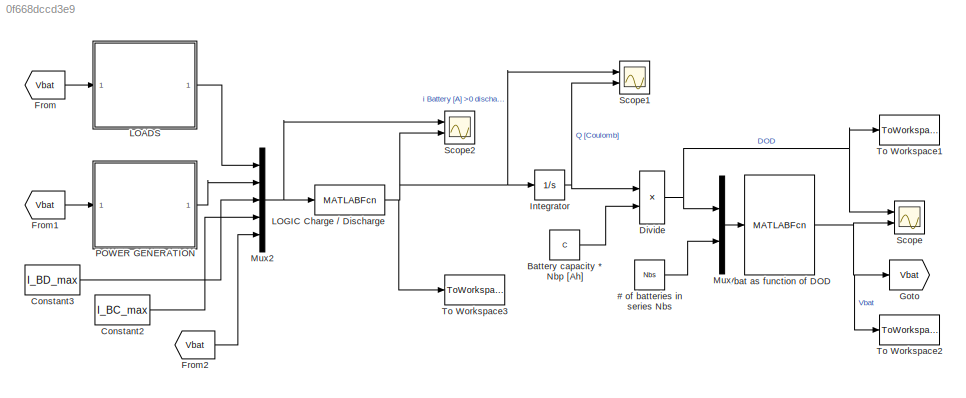
MODEL slx_0f668dccd3e9
KIND model
CONFIG AbsTol = auto
CONFIG EnableMultiTasking = off
CONFIG FixedStep = delta_t
CONFIG MaxStep = 10
CONFIG MinStep = auto
CONFIG RelTol = 1e-3
CONFIG SampleTimeConstraint = Unconstrained
CONFIG SolverName = FixedStepAuto
CONFIG StartTime = 0.0
CONFIG StopTime = tsimulation
BLOCK [Constant] # of batteries in series Nbs
  Value = Nbs
BLOCK [Constant] Battery capacity * Nbp [Ah]
  Value = C
BLOCK [Constant] Constant2
  Value = I_BC_max
BLOCK [Constant] Constant3
  Value = I_BD_max
BLOCK [Product] Divide
  Inputs = */
  Ports = [2, 1]
BLOCK [From] From
  GotoTag = Vbat
BLOCK [From] From1
  GotoTag = Vbat
BLOCK [From] From2
  GotoTag = Vbat
BLOCK [Goto] Goto
  GotoTag = Vbat
BLOCK [Integrator] Integrator
  InitialCondition = DOD_0
  Ports = [1, 1]
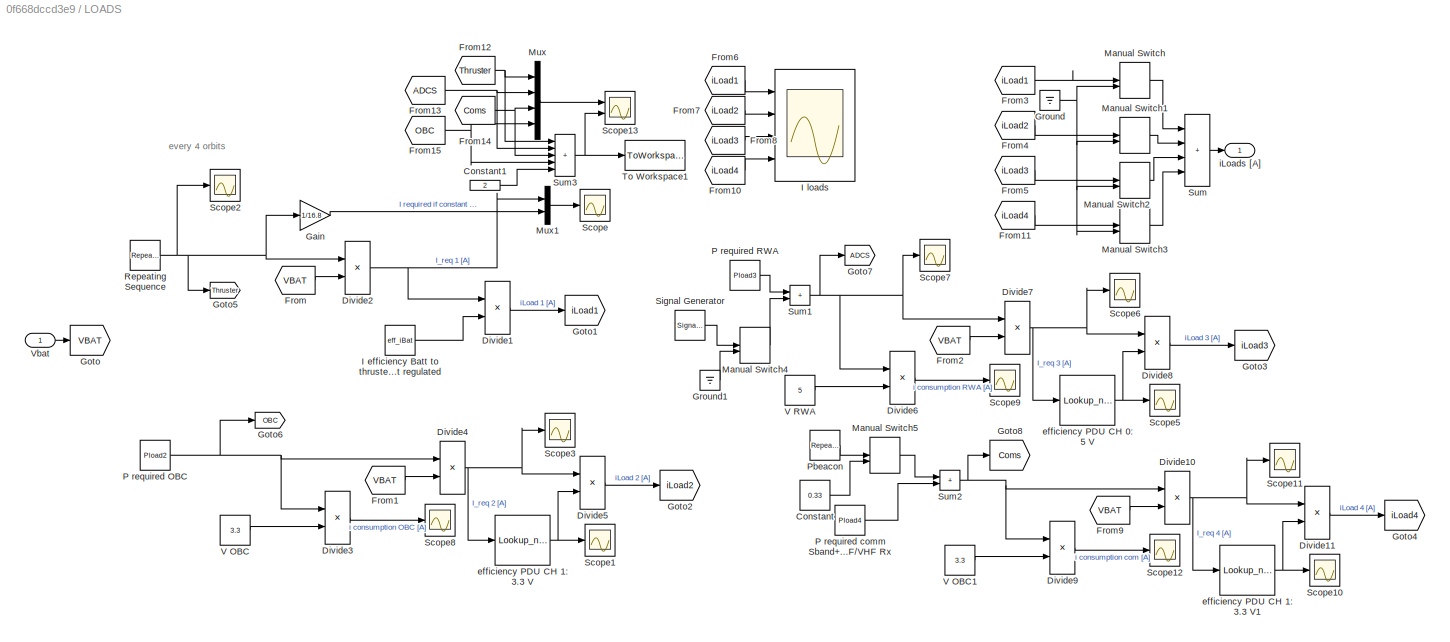
BLOCK [SubSystem] LOADS
  Ports = [1, 1]
  RequestExecContextInheritance = off
BLOCK [Constant] LOADS/Constant
  Value = 0.33
BLOCK [Constant] LOADS/Constant1
  Value = 2
BLOCK [Product] LOADS/Divide1
  Inputs = */
  Ports = [2, 1]
BLOCK [Product] LOADS/Divide10
  Inputs = */
  Ports = [2, 1]
BLOCK [Product] LOADS/Divide11
  Inputs = */
  Ports = [2, 1]
BLOCK [Product] LOADS/Divide2
  Inputs = */
  Ports = [2, 1]
BLOCK [Product] LOADS/Divide3
  Inputs = */
  Ports = [2, 1]
BLOCK [Product] LOADS/Divide4
  Inputs = */
  Ports = [2, 1]
BLOCK [Product] LOADS/Divide5
  Inputs = */
  Ports = [2, 1]
BLOCK [Product] LOADS/Divide6
  Inputs = */
  Ports = [2, 1]
BLOCK [Product] LOADS/Divide7
  Inputs = */
  Ports = [2, 1]
BLOCK [Product] LOADS/Divide8
  Inputs = */
  Ports = [2, 1]
BLOCK [Product] LOADS/Divide9
  Inputs = */
  Ports = [2, 1]
BLOCK [From] LOADS/From
  GotoTag = VBAT
BLOCK [From] LOADS/From1
  GotoTag = VBAT
BLOCK [From] LOADS/From10
  GotoTag = iLoad4
BLOCK [From] LOADS/From11
  GotoTag = iLoad4
BLOCK [From] LOADS/From12
  GotoTag = Thruster
BLOCK [From] LOADS/From13
  GotoTag = ADCS
BLOCK [From] LOADS/From14
  GotoTag = Coms
BLOCK [From] LOADS/From15
  GotoTag = OBC
BLOCK [From] LOADS/From2
  GotoTag = VBAT
BLOCK [From] LOADS/From3
  GotoTag = iLoad1
BLOCK [From] LOADS/From4
  GotoTag = iLoad2
BLOCK [From] LOADS/From5
  GotoTag = iLoad3
BLOCK [From] LOADS/From6
  GotoTag = iLoad1
BLOCK [From] LOADS/From7
  GotoTag = iLoad2
BLOCK [From] LOADS/From8
  GotoTag = iLoad3
BLOCK [From] LOADS/From9
  GotoTag = VBAT
BLOCK [Gain] LOADS/Gain
  Gain = 1/16.8
BLOCK [Goto] LOADS/Goto
  GotoTag = VBAT
BLOCK [Goto] LOADS/Goto1
  GotoTag = iLoad1
BLOCK [Goto] LOADS/Goto2
  GotoTag = iLoad2
BLOCK [Goto] LOADS/Goto3
  GotoTag = iLoad3
BLOCK [Goto] LOADS/Goto4
  GotoTag = iLoad4
BLOCK [Goto] LOADS/Goto5
  GotoTag = Thruster
BLOCK [Goto] LOADS/Goto6
  GotoTag = OBC
BLOCK [Goto] LOADS/Goto7
  GotoTag = ADCS
BLOCK [Goto] LOADS/Goto8
  GotoTag = Coms
BLOCK [Ground] LOADS/Ground
BLOCK [Ground] LOADS/Ground1
BLOCK [Constant] LOADS/I efficiency Batt to thruster not regulated
  Value = eff_iBat
BLOCK [Scope] LOADS/I loads
  Floating = off
  NumInputPorts = 4
  Ports = [4]
  ScopeSpecificationString = Simulink.scopes.TimeScopeBlockCfg('CurrentConfiguration', extmgr.ConfigurationSet(extmgr.Configuration('Core','General UI',true),extmgr.Configuration('Core','Source UI',true),extmgr.Configuration('Sources','WiredSimulink',true,'DataLoggingVariableName','ScopeData1'),extmgr.Configuration('Visuals','Time Domain',true,'SerializedDisplays',{struct('MinYLimReal','-0.43326','MaxYLimReal','4.45719','YLab...<+3527ch>
BLOCK [ManualSwitch] LOADS/Manual Switch
BLOCK [ManualSwitch] LOADS/Manual Switch1
BLOCK [ManualSwitch] LOADS/Manual Switch2
BLOCK [ManualSwitch] LOADS/Manual Switch3
BLOCK [ManualSwitch] LOADS/Manual Switch4
  CurrentSetting = 0
BLOCK [ManualSwitch] LOADS/Manual Switch5
BLOCK [Mux] LOADS/Mux
  DisplayOption = bar
  Ports = [4, 1]
BLOCK [Mux] LOADS/Mux1
  DisplayOption = bar
  Inputs = 2
  Ports = [2, 1]
BLOCK [Constant] LOADS/P required OBC
  Value = Pload2
BLOCK [Constant] LOADS/P required RWA
  Value = Pload3
BLOCK [Constant] LOADS/P required comm Sband+UHF//VHF Rx
  Value = Pload4
BLOCK [Reference] LOADS/Pbeacon  REF=simulink/Sources/Repeating
Sequence
  Ports = [0, 1]
  SourceBlock = simulink/Sources/Repeating\nSequence
  SourceProductBaseCode = SL
  SourceType = Repeating table
BLOCK [Reference] LOADS/Repeating Sequence  REF=simulink/Sources/Repeating
Sequence
  Ports = [0, 1]
  SourceBlock = simulink/Sources/Repeating\nSequence
  SourceProductBaseCode = SL
  SourceType = Repeating table
BLOCK [Scope] LOADS/Scope
  Floating = off
  NumInputPorts = 1
  Ports = [1]
  ScopeSpecificationString = Simulink.scopes.TimeScopeBlockCfg('CurrentConfiguration', extmgr.ConfigurationSet(extmgr.Configuration('Core','General UI',true),extmgr.Configuration('Core','Source UI',true),extmgr.Configuration('Sources','WiredSimulink',true,'DataLoggingVariableName','ScopeData2'),extmgr.Configuration('Visuals','Time Domain',true,'SerializedDisplays',{struct('MinYLimReal','-0.47495','MaxYLimReal','4.46506','YLab...<+1516ch>
BLOCK [Scope] LOADS/Scope1
  Floating = off
  NumInputPorts = 1
  Ports = [1]
  ScopeSpecificationString = Simulink.scopes.TimeScopeBlockCfg('CurrentConfiguration', extmgr.ConfigurationSet(extmgr.Configuration('Core','General UI',true),extmgr.Configuration('Core','Source UI',true),extmgr.Configuration('Sources','WiredSimulink',true,'DataLoggingVariableName','ScopeData1'),extmgr.Configuration('Visuals','Time Domain',true,'SerializedDisplays',{struct('MinYLimReal','0.51067','MaxYLimReal','0.56272','YLabe...<+1383ch>
BLOCK [Scope] LOADS/Scope10
  Floating = off
  NumInputPorts = 1
  Ports = [1]
  ScopeSpecificationString = Simulink.scopes.TimeScopeBlockCfg('CurrentConfiguration', extmgr.ConfigurationSet(extmgr.Configuration('Core','General UI',true),extmgr.Configuration('Core','Source UI',true),extmgr.Configuration('Sources','WiredSimulink',true,'DataLoggingVariableName','ScopeData1'),extmgr.Configuration('Visuals','Time Domain',true,'SerializedDisplays',{struct('MinYLimReal','0.38923','MaxYLimReal','0.88187','YLabe...<+1384ch>
BLOCK [Scope] LOADS/Scope11
  Floating = off
  NumInputPorts = 1
  Ports = [1]
  ScopeSpecificationString = Simulink.scopes.TimeScopeBlockCfg('CurrentConfiguration', extmgr.ConfigurationSet(extmgr.Configuration('Core','General UI',true),extmgr.Configuration('Core','Source UI',true),extmgr.Configuration('Sources','WiredSimulink',true,'DataLoggingVariableName','ScopeData2'),extmgr.Configuration('Visuals','Time Domain',true,'SerializedDisplays',{struct('MinYLimReal','0.07248','MaxYLimReal','0.3596','YLabel...<+1461ch>
BLOCK [Scope] LOADS/Scope12
  Floating = off
  NumInputPorts = 1
  Ports = [1]
  ScopeSpecificationString = Simulink.scopes.TimeScopeBlockCfg('CurrentConfiguration', extmgr.ConfigurationSet(extmgr.Configuration('Core','General UI',true),extmgr.Configuration('Core','Source UI',true),extmgr.Configuration('Sources','WiredSimulink',true,'DataLoggingVariableName','ScopeData3'),extmgr.Configuration('Visuals','Time Domain',true,'SerializedDisplays',{struct('MinYLimReal','0.39015','MaxYLimReal','1.64015','YLabe...<+1477ch>
BLOCK [Scope] LOADS/Scope13
  Floating = off
  NumInputPorts = 2
  Ports = [2]
  ScopeSpecificationString = Simulink.scopes.TimeScopeBlockCfg('CurrentConfiguration', extmgr.ConfigurationSet(extmgr.Configuration('Core','General UI',true),extmgr.Configuration('Core','Source UI',true),extmgr.Configuration('Sources','WiredSimulink',true,'DataLoggingVariableName','ScopeData1'),extmgr.Configuration('Visuals','Time Domain',true,'SerializedDisplays',{struct('MinYLimReal','-7.14','MaxYLimReal','67.46','YLabelRea...<+2211ch>
BLOCK [Scope] LOADS/Scope2
  Floating = off
  NumInputPorts = 1
  Ports = [1]
  ScopeSpecificationString = Simulink.scopes.TimeScopeBlockCfg('CurrentConfiguration', extmgr.ConfigurationSet(extmgr.Configuration('Core','General UI',true),extmgr.Configuration('Core','Source UI',true),extmgr.Configuration('Sources','WiredSimulink',true,'DataLoggingVariableName','ScopeData1'),extmgr.Configuration('Visuals','Time Domain',true,'SerializedDisplays',{struct('MinYLimReal','-7.14','MaxYLimReal','67.46','YLabelRea...<+1577ch>
BLOCK [Scope] LOADS/Scope3
  Floating = off
  NumInputPorts = 1
  Ports = [1]
  ScopeSpecificationString = Simulink.scopes.TimeScopeBlockCfg('CurrentConfiguration', extmgr.ConfigurationSet(extmgr.Configuration('Core','General UI',true),extmgr.Configuration('Core','Source UI',true),extmgr.Configuration('Sources','WiredSimulink',true,'DataLoggingVariableName','ScopeData2'),extmgr.Configuration('Visuals','Time Domain',true,'SerializedDisplays',{struct('MinYLimReal','0.11785','MaxYLimReal','0.12986','YLabe...<+1368ch>
BLOCK [Scope] LOADS/Scope5
  Floating = off
  NumInputPorts = 1
  Ports = [1]
  ScopeSpecificationString = Simulink.scopes.TimeScopeBlockCfg('CurrentConfiguration', extmgr.ConfigurationSet(extmgr.Configuration('Core','General UI',true),extmgr.Configuration('Core','Source UI',true),extmgr.Configuration('Sources','WiredSimulink',true,'DataLoggingVariableName','ScopeData1'),extmgr.Configuration('Visuals','Time Domain',true,'SerializedDisplays',{struct('MinYLimReal','0.48648','MaxYLimReal','0.83866','YLabe...<+1379ch>
BLOCK [Scope] LOADS/Scope6
  Floating = off
  NumInputPorts = 1
  Ports = [1]
  ScopeSpecificationString = Simulink.scopes.TimeScopeBlockCfg('CurrentConfiguration', extmgr.ConfigurationSet(extmgr.Configuration('Core','General UI',true),extmgr.Configuration('Core','Source UI',true),extmgr.Configuration('Sources','WiredSimulink',true,'DataLoggingVariableName','ScopeData2'),extmgr.Configuration('Visuals','Time Domain',true,'SerializedDisplays',{struct('MinYLimReal','0.1029','MaxYLimReal','0.27782','YLabel...<+1362ch>
BLOCK [Scope] LOADS/Scope7
  Floating = off
  NumInputPorts = 1
  Ports = [1]
  ScopeSpecificationString = Simulink.scopes.TimeScopeBlockCfg('CurrentConfiguration', extmgr.ConfigurationSet(extmgr.Configuration('Core','General UI',true),extmgr.Configuration('Core','Source UI',true),extmgr.Configuration('Sources','WiredSimulink',true,'DataLoggingVariableName','ScopeData3'),extmgr.Configuration('Visuals','Time Domain',true,'SerializedDisplays',{struct('MinYLimReal','1.75001','MaxYLimReal','4.25','YLabelRe...<+1447ch>
BLOCK [Scope] LOADS/Scope8
  Floating = off
  NumInputPorts = 1
  Ports = [1]
  ScopeSpecificationString = Simulink.scopes.TimeScopeBlockCfg('CurrentConfiguration', extmgr.ConfigurationSet(extmgr.Configuration('Core','General UI',true),extmgr.Configuration('Core','Source UI',true),extmgr.Configuration('Sources','WiredSimulink',true,'DataLoggingVariableName','ScopeData2'),extmgr.Configuration('Visuals','Time Domain',true,'SerializedDisplays',{struct('MinYLimReal','0.51067','MaxYLimReal','0.56272','YLabe...<+1383ch>
BLOCK [Scope] LOADS/Scope9
  Floating = off
  NumInputPorts = 1
  Ports = [1]
  ScopeSpecificationString = Simulink.scopes.TimeScopeBlockCfg('CurrentConfiguration', extmgr.ConfigurationSet(extmgr.Configuration('Core','General UI',true),extmgr.Configuration('Core','Source UI',true),extmgr.Configuration('Sources','WiredSimulink',true,'DataLoggingVariableName','ScopeData3'),extmgr.Configuration('Visuals','Time Domain',true,'SerializedDisplays',{struct('MinYLimReal','0.51067','MaxYLimReal','0.56272','YLabe...<+1383ch>
BLOCK [SignalGenerator] LOADS/Signal Generator
  Amplitude = 0.6
  Frequency = 0.01
  Ports = [0, 1]
  WaveForm = random
BLOCK [Sum] LOADS/Sum
  IconShape = rectangular
  Inputs = ++++
  Ports = [4, 1]
BLOCK [Sum] LOADS/Sum1
  IconShape = rectangular
  Ports = [2, 1]
BLOCK [Sum] LOADS/Sum2
  IconShape = rectangular
  Ports = [2, 1]
BLOCK [Sum] LOADS/Sum3
  IconShape = rectangular
  Inputs = +++++
  Ports = [5, 1]
BLOCK [ToWorkspace] LOADS/To Workspace1
  FixptAsFi = on
  MaxDataPoints = inf
  Ports = [1]
  SampleTime = -1
  SaveFormat = Timeseries
  VariableName = LOAD
BLOCK [Constant] LOADS/V OBC
  Value = 3.3
BLOCK [Constant] LOADS/V OBC1
  Value = 3.3
BLOCK [Constant] LOADS/V RWA
  Value = 5
BLOCK [Inport] LOADS/Vbat
BLOCK [Lookup_n-D] LOADS/efficiency PDU CH 0: 5 V
  BreakpointsForDimension1 = [0,0.15,0.18,0.25,0.4,0.5,0.75,1,1.5,2,3,4]
  InputPortMap = u0
  InternalRulePriority = Speed
  NumberOfTableDimensions = 1
  Ports = [1, 1]
  RndMeth = Simplest
  Table = [0.8,0.8,0.8,0.8,0.85,0.95,0.96,0.958,0.95,0.94,0.92,0.9]
BLOCK [Lookup_n-D] LOADS/efficiency PDU CH 1: 3.3 V
  BreakpointsForDimension1 = [0,0.15,0.18,0.25,0.4,0.5,0.75,1,1.5,2,3,4]
  InputPortMap = u0
  InternalRulePriority = Speed
  NumberOfTableDimensions = 1
  Ports = [1, 1]
  RndMeth = Simplest
  Table = [0.94,0.95,0.95,0.95,0.945,0.946,0.945,0.9425,0.931,0.9181,0.8916,0.862]
BLOCK [Lookup_n-D] LOADS/efficiency PDU CH 1: 3.3 V1
  BreakpointsForDimension1 = [0,0.15,0.18,0.25,0.4,0.5,0.75,1,1.5,2,3,4]
  InputPortMap = u0
  InternalRulePriority = Speed
  NumberOfTableDimensions = 1
  Ports = [1, 1]
  RndMeth = Simplest
  Table = [0.94,0.95,0.95,0.95,0.945,0.946,0.945,0.9425,0.931,0.9181,0.8916,0.862]
BLOCK [Outport] LOADS/iLoads [A]
BLOCK [MATLABFcn] LOGIC Charge // Discharge
  MATLABFcn = battchargedischarge
  Ports = [1, 1]
BLOCK [Mux] Mux
  DisplayOption = bar
  Inputs = 2
  Ports = [2, 1]
BLOCK [Mux] Mux2
  DisplayOption = bar
  Inputs = 5
  Ports = [5, 1]
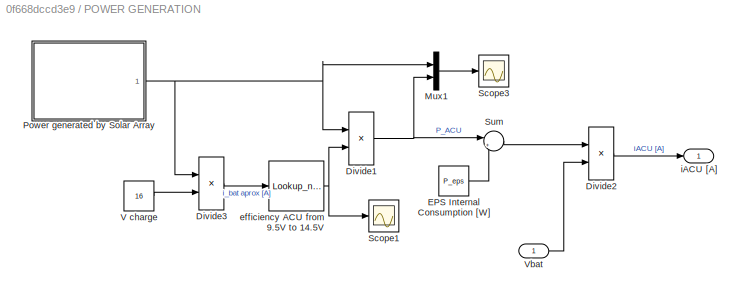
BLOCK [SubSystem] POWER GENERATION
  Ports = [1, 1]
  RequestExecContextInheritance = off
BLOCK [Product] POWER GENERATION/Divide1
  Inputs = **
  Ports = [2, 1]
BLOCK [Product] POWER GENERATION/Divide2
  Inputs = */
  Ports = [2, 1]
BLOCK [Product] POWER GENERATION/Divide3
  Inputs = */
  Ports = [2, 1]
BLOCK [Constant] POWER GENERATION/EPS Internal Consumption [W]
  Value = P_eps
BLOCK [Mux] POWER GENERATION/Mux1
  DisplayOption = bar
  Inputs = 2
  Ports = [2, 1]
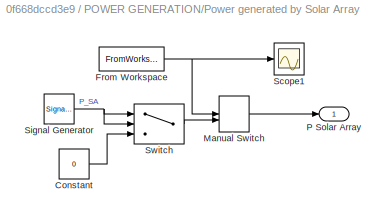
BLOCK [SubSystem] POWER GENERATION/Power generated by Solar Array
  Ports = [0, 1]
  RequestExecContextInheritance = off
BLOCK [Constant] POWER GENERATION/Power generated by Solar Array/Constant
  Value = 0
BLOCK [FromWorkspace] POWER GENERATION/Power generated by Solar Array/From Workspace
  VariableName = Power.Psa1
BLOCK [ManualSwitch] POWER GENERATION/Power generated by Solar Array/Manual Switch
BLOCK [Outport] POWER GENERATION/Power generated by Solar Array/P Solar Array
BLOCK [Scope] POWER GENERATION/Power generated by Solar Array/Scope1
  Floating = off
  NumInputPorts = 1
  Ports = [1]
  ScopeSpecificationString = Simulink.scopes.TimeScopeBlockCfg('CurrentConfiguration', extmgr.ConfigurationSet(extmgr.Configuration('Core','General UI',true),extmgr.Configuration('Core','Source UI',true),extmgr.Configuration('Sources','WiredSimulink',true,'DataLoggingVariableName','ScopeData3'),extmgr.Configuration('Visuals','Time Domain',true,'SerializedDisplays',{struct('MinYLimReal','46.10258','MaxYLimReal','46.35505','YLa...<+1404ch>
BLOCK [SignalGenerator] POWER GENERATION/Power generated by Solar Array/Signal Generator
  Amplitude = -Psa
  Frequency = 1/Torbit
  Ports = [0, 1]
BLOCK [Switch] POWER GENERATION/Power generated by Solar Array/Switch
  Criteria = u2 > Threshold
  InputSameDT = off
  SaturateOnIntegerOverflow = off
BLOCK [Scope] POWER GENERATION/Scope1
  Floating = off
  NumInputPorts = 1
  Ports = [1]
  ScopeSpecificationString = Simulink.scopes.TimeScopeBlockCfg('CurrentConfiguration', extmgr.ConfigurationSet(extmgr.Configuration('Core','General UI',true),extmgr.Configuration('Core','Source UI',true),extmgr.Configuration('Sources','WiredSimulink',true,'DataLoggingVariableName','ScopeData1'),extmgr.Configuration('Visuals','Time Domain',true,'SerializedDisplays',{struct('MinYLimReal','-0.10579','MaxYLimReal','0.95213','YLab...<+1398ch>
BLOCK [Scope] POWER GENERATION/Scope3
  Floating = off
  NumInputPorts = 1
  Ports = [1]
  ScopeSpecificationString = Simulink.scopes.TimeScopeBlockCfg('CurrentConfiguration', extmgr.ConfigurationSet(extmgr.Configuration('Core','General UI',true),extmgr.Configuration('Core','Source UI',true),extmgr.Configuration('Sources','WiredSimulink',true,'DataLoggingVariableName','ScopeData4'),extmgr.Configuration('Visuals','Time Domain',true,'SerializedDisplays',{struct('MinYLimReal','37.62602','MaxYLimReal','47.29689','YLa...<+1481ch>
BLOCK [Sum] POWER GENERATION/Sum
  Inputs = |+-
  Ports = [2, 1]
BLOCK [Constant] POWER GENERATION/V charge
  Value = 16
BLOCK [Inport] POWER GENERATION/Vbat
BLOCK [Lookup_n-D] POWER GENERATION/efficiency ACU from 9.5V to 14.5V
  BreakpointsForDimension1 = [0,0.13,0.16,0.236,0.4187,0.654,0.684,0.745,0.801,0.9372,1.046,1.16,1.21,1.5,1.66,2,4]
  InputPortMap = u0
  InternalRulePriority = Speed
  NumberOfTableDimensions = 1
  Ports = [1, 1]
  RndMeth = Simplest
  Table = [0.905,0.928,0.9296,0.9296,0.9337,0.9296,0.9296,0.9296,0.9275,0.9275,0.9254,0.9254,0.9234,0.9193,0.9193,0.9134,0.9134]
BLOCK [Outport] POWER GENERATION/iACU [A]
BLOCK [Scope] Scope
  Floating = off
  NumInputPorts = 2
  Ports = [2]
  ScopeSpecificationString = Simulink.scopes.TimeScopeBlockCfg('CurrentConfiguration', extmgr.ConfigurationSet(extmgr.Configuration('Core','General UI',true),extmgr.Configuration('Core','Source UI',true),extmgr.Configuration('Sources','WiredSimulink',true),extmgr.Configuration('Visuals','Time Domain',true,'SerializedDisplays',{struct('MinYLimReal','-0.02926','MaxYLimReal','0.2632','YLabelReal','','MinYLimMag','0.00000','MaxYL...<+2007ch>
BLOCK [Scope] Scope1
  Floating = off
  NumInputPorts = 2
  Ports = [2]
  ScopeSpecificationString = Simulink.scopes.TimeScopeBlockCfg('CurrentConfiguration', extmgr.ConfigurationSet(extmgr.Configuration('Core','General UI',true),extmgr.Configuration('Core','Source UI',true),extmgr.Configuration('Sources','WiredSimulink',true,'DataLoggingVariableName','ScopeData1'),extmgr.Configuration('Visuals','Time Domain',true,'SerializedDisplays',{struct('MinYLimReal','-2.82383','MaxYLimReal','5.60612','YLab...<+2184ch>
BLOCK [Scope] Scope2
  Floating = off
  NumInputPorts = 2
  Ports = [2]
  ScopeSpecificationString = Simulink.scopes.TimeScopeBlockCfg('CurrentConfiguration', extmgr.ConfigurationSet(extmgr.Configuration('Core','General UI',true),extmgr.Configuration('Core','Source UI',true),extmgr.Configuration('Sources','WiredSimulink',true,'DataLoggingVariableName','ScopeData3'),extmgr.Configuration('Visuals','Time Domain',true,'SerializedDisplays',{struct('MinYLimReal','-2.14372','MaxYLimReal','18.90517','YLa...<+2302ch>
BLOCK [ToWorkspace] To Workspace1
  FixptAsFi = on
  MaxDataPoints = inf
  Ports = [1]
  SampleTime = -1
  SaveFormat = Timeseries
  VariableName = DOD
BLOCK [ToWorkspace] To Workspace2
  FixptAsFi = on
  MaxDataPoints = inf
  Ports = [1]
  SampleTime = -1
  SaveFormat = Timeseries
  VariableName = Vbat
BLOCK [ToWorkspace] To Workspace3
  FixptAsFi = on
  MaxDataPoints = inf
  Ports = [1]
  SampleTime = -1
  SaveFormat = Timeseries
  VariableName = Ibat
BLOCK [MATLABFcn] Vbat as function of DOD
  MATLABFcn = VbatDOD
  Ports = [1, 1]
ANNOTATION LOADS: every 4 orbits
LINE # of batteries in series Nbs:1 -> Mux:2
LINE Battery capacity * Nbp [Ah]:1 -> Divide:2
LINE Constant2:1 -> Mux2:4
LINE Constant3:1 -> Mux2:3
NET Divide:1 -> Mux:1, Scope:1, To Workspace1:1
LINE From1:1 -> POWER GENERATION:1
LINE From2:1 -> Mux2:5
LINE From:1 -> LOADS:1
NET Integrator:1 -> Divide:1, Scope1:2
LINE LOADS/Constant1:1 -> LOADS/Sum3:5
LINE LOADS/Constant:1 -> LOADS/Manual Switch5:2
NET LOADS/Divide10:1 -> LOADS/Divide11:1, LOADS/Scope11:1, LOADS/efficiency PDU CH 1: 3.3 V1:1
LINE LOADS/Divide11:1 -> LOADS/Goto4:1
LINE LOADS/Divide1:1 -> LOADS/Goto1:1
NET LOADS/Divide2:1 -> LOADS/Divide1:1, LOADS/Mux1:1
LINE LOADS/Divide3:1 -> LOADS/Scope8:1
NET LOADS/Divide4:1 -> LOADS/Divide5:1, LOADS/Scope3:1, LOADS/efficiency PDU CH 1: 3.3 V:1
LINE LOADS/Divide5:1 -> LOADS/Goto2:1
LINE LOADS/Divide6:1 -> LOADS/Scope9:1
NET LOADS/Divide7:1 -> LOADS/Divide8:1, LOADS/Scope6:1, LOADS/efficiency PDU CH 0: 5 V:1
LINE LOADS/Divide8:1 -> LOADS/Goto3:1
LINE LOADS/Divide9:1 -> LOADS/Scope12:1
LINE LOADS/From10:1 -> LOADS/I loads:4
LINE LOADS/From11:1 -> LOADS/Manual Switch3:1
NET LOADS/From12:1 -> LOADS/Mux:1, LOADS/Sum3:1
NET LOADS/From13:1 -> LOADS/Mux:2, LOADS/Sum3:2
NET LOADS/From14:1 -> LOADS/Mux:3, LOADS/Sum3:3
NET LOADS/From15:1 -> LOADS/Mux:4, LOADS/Sum3:4
LINE LOADS/From1:1 -> LOADS/Divide4:2
LINE LOADS/From2:1 -> LOADS/Divide7:2
LINE LOADS/From3:1 -> LOADS/Manual Switch:1
LINE LOADS/From4:1 -> LOADS/Manual Switch1:1
LINE LOADS/From5:1 -> LOADS/Manual Switch2:1
LINE LOADS/From6:1 -> LOADS/I loads:1
LINE LOADS/From7:1 -> LOADS/I loads:2
LINE LOADS/From8:1 -> LOADS/I loads:3
LINE LOADS/From9:1 -> LOADS/Divide10:2
LINE LOADS/From:1 -> LOADS/Divide2:2
LINE LOADS/Gain:1 -> LOADS/Mux1:2
LINE LOADS/Ground1:1 -> LOADS/Manual Switch4:2
NET LOADS/Ground:1 -> LOADS/Manual Switch1:2, LOADS/Manual Switch2:2, LOADS/Manual Switch3:2, LOADS/Manual Switch:2
LINE LOADS/I efficiency Batt to thruster not regulated:1 -> LOADS/Divide1:2
LINE LOADS/Manual Switch1:1 -> LOADS/Sum:2
LINE LOADS/Manual Switch2:1 -> LOADS/Sum:3
LINE LOADS/Manual Switch3:1 -> LOADS/Sum:4
LINE LOADS/Manual Switch4:1 -> LOADS/Sum1:2
LINE LOADS/Manual Switch5:1 -> LOADS/Sum2:1
LINE LOADS/Manual Switch:1 -> LOADS/Sum:1
LINE LOADS/Mux1:1 -> LOADS/Scope:1
LINE LOADS/Mux:1 -> LOADS/Scope13:1
NET LOADS/P required OBC:1 -> LOADS/Divide3:1, LOADS/Divide4:1, LOADS/Goto6:1
LINE LOADS/P required RWA:1 -> LOADS/Sum1:1
LINE LOADS/P required comm Sband+UHF//VHF Rx:1 -> LOADS/Sum2:2
LINE LOADS/Pbeacon:1 -> LOADS/Manual Switch5:1
NET LOADS/Repeating Sequence:1 -> LOADS/Divide2:1, LOADS/Gain:1, LOADS/Goto5:1, LOADS/Scope2:1
LINE LOADS/Signal Generator:1 -> LOADS/Manual Switch4:1
NET LOADS/Sum1:1 -> LOADS/Divide6:1, LOADS/Divide7:1, LOADS/Goto7:1, LOADS/Scope7:1
NET LOADS/Sum2:1 -> LOADS/Divide10:1, LOADS/Divide9:1, LOADS/Goto8:1
NET LOADS/Sum3:1 -> LOADS/Scope13:2, LOADS/To Workspace1:1
LINE LOADS/Sum:1 -> LOADS/iLoads [A]:1
LINE LOADS/V OBC1:1 -> LOADS/Divide9:2
LINE LOADS/V OBC:1 -> LOADS/Divide3:2
LINE LOADS/V RWA:1 -> LOADS/Divide6:2
LINE LOADS/Vbat:1 -> LOADS/Goto:1
NET LOADS/efficiency PDU CH 0: 5 V:1 -> LOADS/Divide8:2, LOADS/Scope5:1
NET LOADS/efficiency PDU CH 1: 3.3 V1:1 -> LOADS/Divide11:2, LOADS/Scope10:1
NET LOADS/efficiency PDU CH 1: 3.3 V:1 -> LOADS/Divide5:2, LOADS/Scope1:1
LINE LOADS:1 -> Mux2:1
NET LOGIC Charge // Discharge:1 -> Integrator:1, Scope1:1, Scope2:2, To Workspace3:1
NET Mux2:1 -> LOGIC Charge // Discharge:1, Scope2:1
LINE Mux:1 -> Vbat as function of DOD:1
NET POWER GENERATION/Divide1:1 -> POWER GENERATION/Mux1:2, POWER GENERATION/Sum:1
LINE POWER GENERATION/Divide2:1 -> POWER GENERATION/iACU [A]:1
LINE POWER GENERATION/Divide3:1 -> POWER GENERATION/efficiency ACU from 9.5V to 14.5V:1
LINE POWER GENERATION/EPS Internal Consumption [W]:1 -> POWER GENERATION/Sum:2
LINE POWER GENERATION/Mux1:1 -> POWER GENERATION/Scope3:1
LINE POWER GENERATION/Power generated by Solar Array/Constant:1 -> POWER GENERATION/Power generated by Solar Array/Switch:3
NET POWER GENERATION/Power generated by Solar Array/From Workspace:1 -> POWER GENERATION/Power generated by Solar Array/Manual Switch:1, POWER GENERATION/Power generated by Solar Array/Scope1:1
LINE POWER GENERATION/Power generated by Solar Array/Manual Switch:1 -> POWER GENERATION/Power generated by Solar Array/P Solar Array:1
NET POWER GENERATION/Power generated by Solar Array/Signal Generator:1 -> POWER GENERATION/Power generated by Solar Array/Switch:1, POWER GENERATION/Power generated by Solar Array/Switch:2
LINE POWER GENERATION/Power generated by Solar Array/Switch:1 -> POWER GENERATION/Power generated by Solar Array/Manual Switch:2
NET POWER GENERATION/Power generated by Solar Array:1 -> POWER GENERATION/Divide1:1, POWER GENERATION/Divide3:1, POWER GENERATION/Mux1:1
LINE POWER GENERATION/Sum:1 -> POWER GENERATION/Divide2:1
LINE POWER GENERATION/V charge:1 -> POWER GENERATION/Divide3:2
LINE POWER GENERATION/Vbat:1 -> POWER GENERATION/Divide2:2
NET POWER GENERATION/efficiency ACU from 9.5V to 14.5V:1 -> POWER GENERATION/Divide1:2, POWER GENERATION/Scope1:1
LINE POWER GENERATION:1 -> Mux2:2
NET Vbat as function of DOD:1 -> Goto:1, Scope:2, To Workspace2:1
note: NET lines group one-source signal fan-out (src -> all destinations, sorted); 1:1 wires keep LINE
